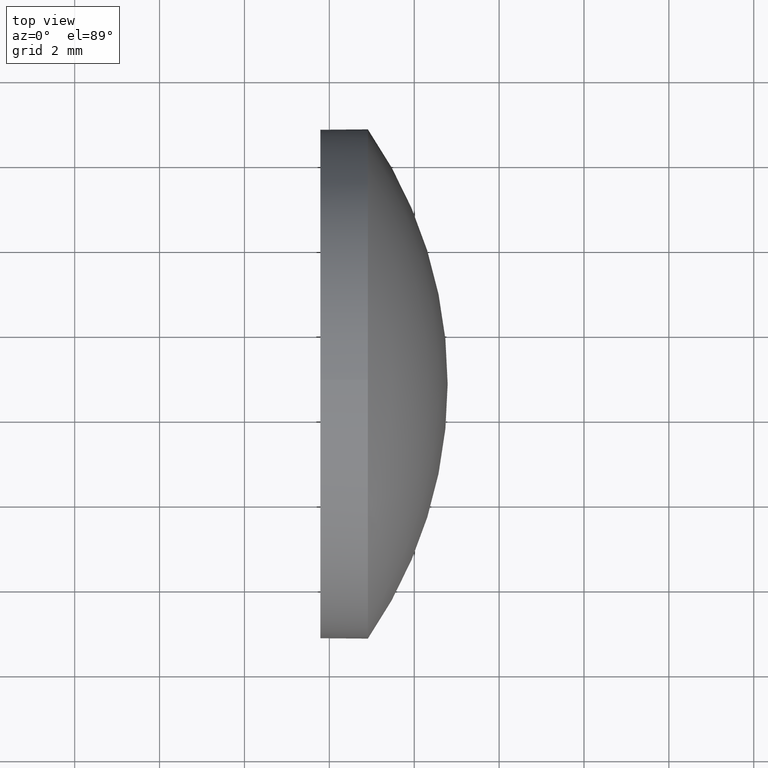
[diagram: clean part render]
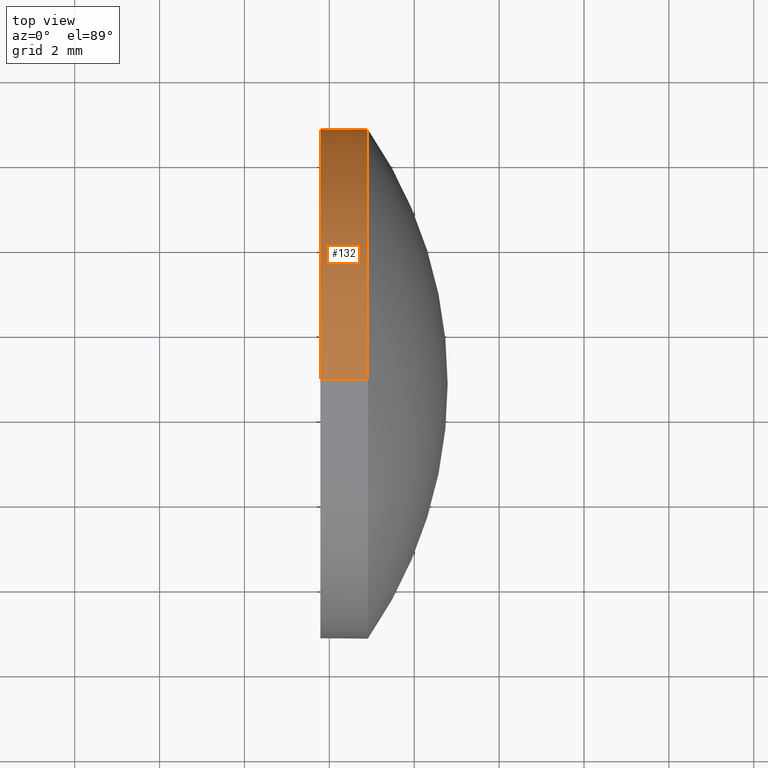
[diagram: same view with one face highlighted and labeled with its STEP entity id]
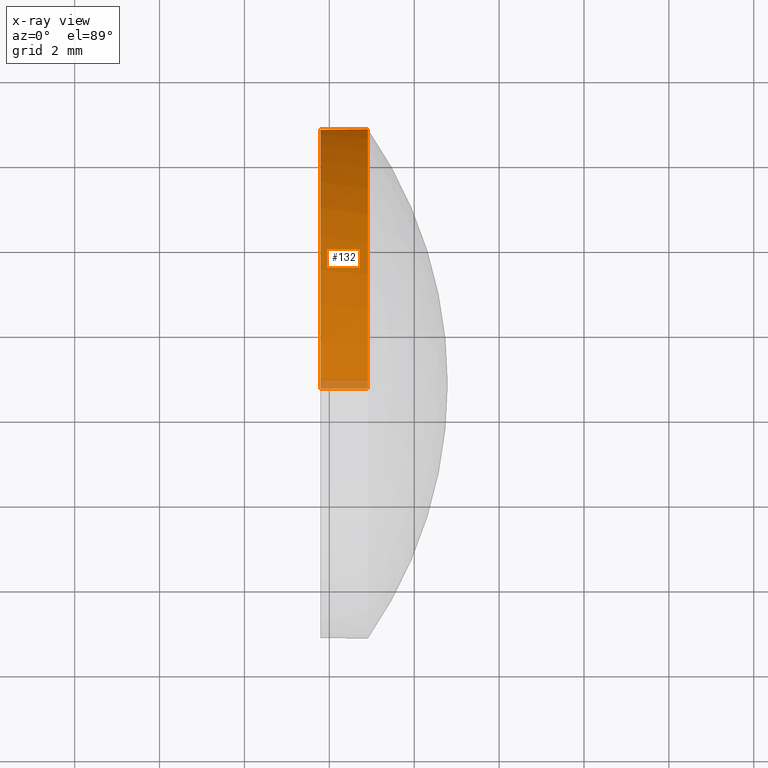
[diagram: x-ray of the same camera — body ghosted, the highlighted face saturated]
A machine part, top view. The second image highlights one B-rep face of the part: STEP entity #132.
The next image is the same camera in x-ray: the body ghosted, the highlighted face saturated — about 3% of this face is hidden behind the body in this view.
In plain terms, the highlighted cylindrical surface (partial cylindrical patch) has radius 6 mm, axis along (-1, -0, -0).
Its self-contained STEP definition (entity closure, byte-faithful):
#5 = CIRCLE ( 'NONE', #8, 6.000000000000000000 ) ;
#6 = ORIENTED_EDGE ( 'NONE', *, *, #114, .T. ) ;
#8 = AXIS2_PLACEMENT_3D ( 'NONE', #181, #45, #130 ) ;
#10 = EDGE_CURVE ( 'NONE', #52, #124, #39, .T. ) ;
#11 = LINE ( 'NONE', #163, #160 ) ;
#14 = VERTEX_POINT ( 'NONE', #127 ) ;
#16 = VERTEX_POINT ( 'NONE', #32 ) ;
#19 = CARTESIAN_POINT ( 'NONE',  ( 361.9267088027018000, 4.792432630427242700, 0.0000000000000000000 ) ) ;
#20 = CARTESIAN_POINT ( 'NONE',  ( 361.9267088027018000, 4.792432630427243500, -6.000000000000000000 ) ) ;
#29 = AXIS2_PLACEMENT_3D ( 'NONE', #19, #86, #42 ) ;
#32 = CARTESIAN_POINT ( 'NONE',  ( 363.7880584487206800, 4.792432630427242700, 6.000000000000000000 ) ) ;
#33 = AXIS2_PLACEMENT_3D ( 'NONE', #47, #180, #44 ) ;
#34 = EDGE_LOOP ( 'NONE', ( #94, #6, #176, #159, #69 ) ) ;
#35 = DIRECTION ( 'NONE',  ( -1.000000000000000000, -0.0000000000000000000, -0.0000000000000000000 ) ) ;
#39 = CIRCLE ( 'NONE', #33, 6.000000000000000000 ) ;
#41 = CYLINDRICAL_SURFACE ( 'NONE', #29, 6.000000000000000000 ) ;
#42 = DIRECTION ( 'NONE',  ( 0.0000000000000000000, 0.0000000000000000000, 1.000000000000000000 ) ) ;
#44 = DIRECTION ( 'NONE',  ( 0.0000000000000000000, 0.0000000000000000000, 1.000000000000000000 ) ) ;
#45 = DIRECTION ( 'NONE',  ( -1.000000000000000000, -0.0000000000000000000, -0.0000000000000000000 ) ) ;
#47 = CARTESIAN_POINT ( 'NONE',  ( 364.9080584487206800, 4.792432630427242700, 0.0000000000000000000 ) ) ;
#52 = VERTEX_POINT ( 'NONE', #112 ) ;
#69 = ORIENTED_EDGE ( 'NONE', *, *, #10, .T. ) ;
#70 = LINE ( 'NONE', #20, #145 ) ;
#75 = CARTESIAN_POINT ( 'NONE',  ( 363.7880584487206800, 4.792432630427242700, 0.0000000000000000000 ) ) ;
#76 = DIRECTION ( 'NONE',  ( 0.0000000000000000000, 0.0000000000000000000, 1.000000000000000000 ) ) ;
#85 = EDGE_CURVE ( 'NONE', #124, #14, #5, .T. ) ;
#86 = DIRECTION ( 'NONE',  ( -1.000000000000000000, -0.0000000000000000000, -0.0000000000000000000 ) ) ;
#94 = ORIENTED_EDGE ( 'NONE', *, *, #85, .T. ) ;
#111 = CIRCLE ( 'NONE', #158, 6.000000000000000000 ) ;
#112 = CARTESIAN_POINT ( 'NONE',  ( 364.9080584487206800, 4.792432630427242700, 6.000000000000000000 ) ) ;
#114 = EDGE_CURVE ( 'NONE', #14, #131, #70, .T. ) ;
#120 = EDGE_CURVE ( 'NONE', #52, #16, #11, .T. ) ;
#124 = VERTEX_POINT ( 'NONE', #146 ) ;
#126 = DIRECTION ( 'NONE',  ( -1.000000000000000000, -0.0000000000000000000, -0.0000000000000000000 ) ) ;
#127 = CARTESIAN_POINT ( 'NONE',  ( 364.9080584487206800, 4.792432630427243500, -6.000000000000000000 ) ) ;
#128 = DIRECTION ( 'NONE',  ( -1.000000000000000000, -0.0000000000000000000, -0.0000000000000000000 ) ) ;
#130 = DIRECTION ( 'NONE',  ( 0.0000000000000000000, 0.0000000000000000000, 1.000000000000000000 ) ) ;
#131 = VERTEX_POINT ( 'NONE', #147 ) ;
#132 = ADVANCED_FACE ( 'NONE', ( #149 ), #41, .T. ) ;
#145 = VECTOR ( 'NONE', #126, 1000.000000000000000 ) ;
#146 = CARTESIAN_POINT ( 'NONE',  ( 364.9080584487206800, 10.79243263042723900, 0.0000000000000000000 ) ) ;
#147 = CARTESIAN_POINT ( 'NONE',  ( 363.7880584487206800, 4.792432630427243500, -6.000000000000000000 ) ) ;
#149 = FACE_OUTER_BOUND ( 'NONE', #34, .T. ) ;
#158 = AXIS2_PLACEMENT_3D ( 'NONE', #75, #35, #76 ) ;
#159 = ORIENTED_EDGE ( 'NONE', *, *, #120, .F. ) ;
#160 = VECTOR ( 'NONE', #128, 1000.000000000000000 ) ;
#163 = CARTESIAN_POINT ( 'NONE',  ( 361.9267088027018000, 4.792432630427242700, 6.000000000000000000 ) ) ;
#176 = ORIENTED_EDGE ( 'NONE', *, *, #177, .F. ) ;
#177 = EDGE_CURVE ( 'NONE', #16, #131, #111, .T. ) ;
#180 = DIRECTION ( 'NONE',  ( -1.000000000000000000, -0.0000000000000000000, -0.0000000000000000000 ) ) ;
#181 = CARTESIAN_POINT ( 'NONE',  ( 364.9080584487206800, 4.792432630427242700, 0.0000000000000000000 ) ) ;